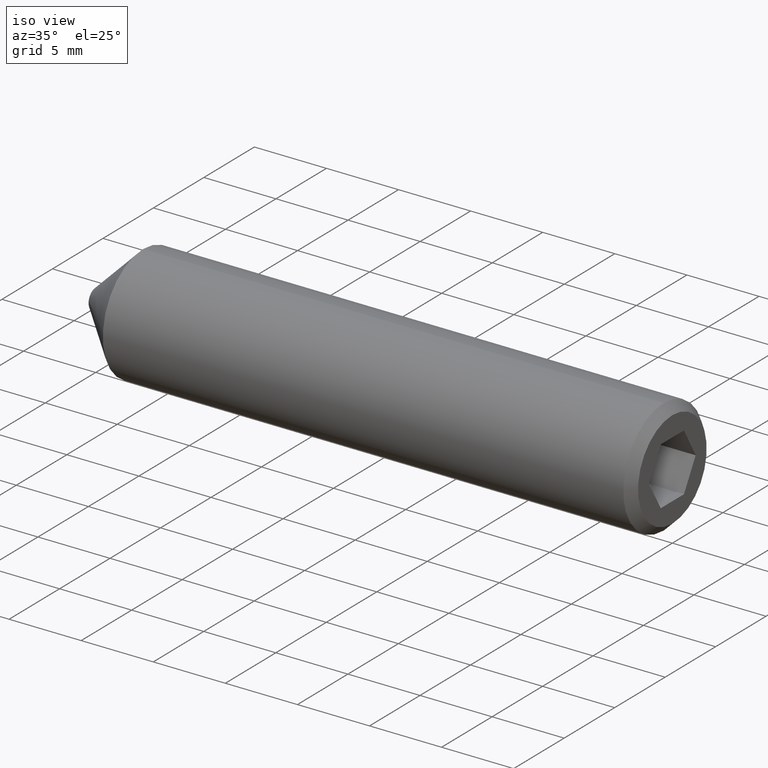
[diagram: clean part render]
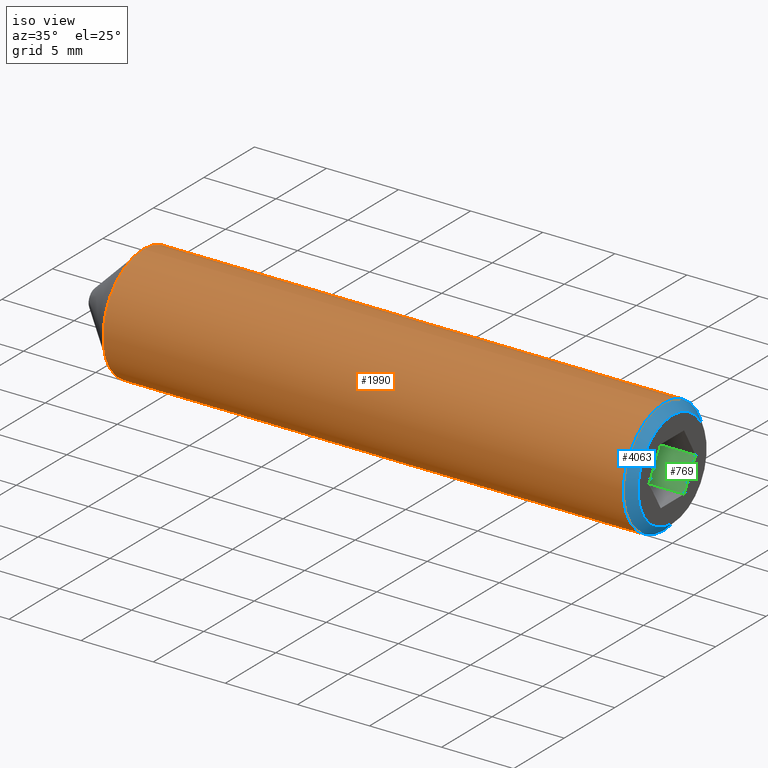
[diagram: same view with three faces highlighted in distinct colors, each labeled with its STEP entity id]
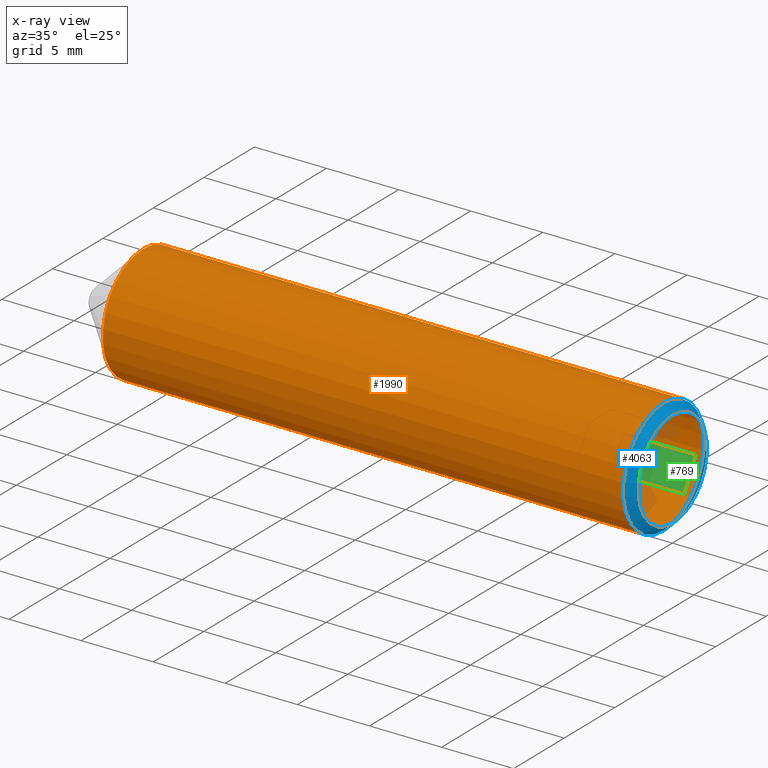
[diagram: x-ray of the same camera — body ghosted, the three highlighted faces saturated]
A machine part, iso view with three faces highlighted in distinct colors.
The next image is the same camera in x-ray (body ghosted, the three faces saturated) — at least one of them is partly hidden behind the body in this view.
Their STEP definitions:

[orange] entity #1990 — the highlighted cylindrical surface (bore or boss wall) has radius 4 mm, axis along (-1, -0, -0).
#586 = AXIS2_PLACEMENT_3D ( 'NONE', #9685, #3301, #9835 ) ;
#1257 = EDGE_CURVE ( 'NONE', #5596, #5596, #2350, .T. ) ;
#1603 = EDGE_CURVE ( 'NONE', #3156, #3156, #3956, .T. ) ;
#1990 = ADVANCED_FACE ( 'NONE', ( #7675, #5115 ), #2332, .T. ) ;
#2332 = CYLINDRICAL_SURFACE ( 'NONE', #10658, 4.000000000000000000 ) ;
#2350 = CIRCLE ( 'NONE', #586, 4.000000000000000000 ) ;
#2600 = CARTESIAN_POINT ( 'NONE',  ( 3.299999999999963400, 0.0000000000000000000, 4.000000000000000000 ) ) ;
#3156 = VERTEX_POINT ( 'NONE', #8924 ) ;
#3301 = DIRECTION ( 'NONE',  ( -1.000000000000000000, -0.0000000000000000000, -0.0000000000000000000 ) ) ;
#3956 = CIRCLE ( 'NONE', #8208, 4.000000000000000000 ) ;
#4461 = DIRECTION ( 'NONE',  ( 0.0000000000000000000, 0.0000000000000000000, 1.000000000000000000 ) ) ;
#4992 = EDGE_LOOP ( 'NONE', ( #6150 ) ) ;
#5115 = FACE_OUTER_BOUND ( 'NONE', #4992, .T. ) ;
#5459 = EDGE_LOOP ( 'NONE', ( #5468 ) ) ;
#5468 = ORIENTED_EDGE ( 'NONE', *, *, #1603, .T. ) ;
#5537 = CARTESIAN_POINT ( 'NONE',  ( 39.39999999999999900, 0.0000000000000000000, 0.0000000000000000000 ) ) ;
#5596 = VERTEX_POINT ( 'NONE', #2600 ) ;
#6150 = ORIENTED_EDGE ( 'NONE', *, *, #1257, .F. ) ;
#6370 = CARTESIAN_POINT ( 'NONE',  ( 40.00000000000000000, 0.0000000000000000000, 0.0000000000000000000 ) ) ;
#7378 = DIRECTION ( 'NONE',  ( 0.0000000000000000000, 0.0000000000000000000, -1.000000000000000000 ) ) ;
#7675 = FACE_OUTER_BOUND ( 'NONE', #5459, .T. ) ;
#8208 = AXIS2_PLACEMENT_3D ( 'NONE', #5537, #11129, #7378 ) ;
#8924 = CARTESIAN_POINT ( 'NONE',  ( 39.39999999999999900, 0.0000000000000000000, -4.000000000000000000 ) ) ;
#9685 = CARTESIAN_POINT ( 'NONE',  ( 3.299999999999963400, 0.0000000000000000000, 0.0000000000000000000 ) ) ;
#9835 = DIRECTION ( 'NONE',  ( 0.0000000000000000000, 0.0000000000000000000, 1.000000000000000000 ) ) ;
#10658 = AXIS2_PLACEMENT_3D ( 'NONE', #6370, #10887, #4461 ) ;
#10887 = DIRECTION ( 'NONE',  ( -1.000000000000000000, -0.0000000000000000000, -0.0000000000000000000 ) ) ;
#11129 = DIRECTION ( 'NONE',  ( -1.000000000000000000, 0.0000000000000000000, 0.0000000000000000000 ) ) ;

[blue] entity #4063 — the highlighted conical surface has half-angle 45 deg.
#26 = CARTESIAN_POINT ( 'NONE',  ( 40.00000000000000000, 0.0000000000000000000, 0.0000000000000000000 ) ) ;
#337 = CARTESIAN_POINT ( 'NONE',  ( 40.00000000000000000, 0.0000000000000000000, 0.0000000000000000000 ) ) ;
#730 = FACE_OUTER_BOUND ( 'NONE', #7349, .T. ) ;
#1244 = DIRECTION ( 'NONE',  ( 1.000000000000000000, 0.0000000000000000000, 0.0000000000000000000 ) ) ;
#1603 = EDGE_CURVE ( 'NONE', #3156, #3156, #3956, .T. ) ;
#1803 = CARTESIAN_POINT ( 'NONE',  ( 40.00000000000000000, 0.0000000000000000000, -3.399999999999997200 ) ) ;
#2643 = EDGE_CURVE ( 'NONE', #6879, #6879, #10655, .T. ) ;
#3156 = VERTEX_POINT ( 'NONE', #8924 ) ;
#3899 = DIRECTION ( 'NONE',  ( -1.000000000000000000, 0.0000000000000000000, 0.0000000000000000000 ) ) ;
#3956 = CIRCLE ( 'NONE', #8208, 4.000000000000000000 ) ;
#4019 = EDGE_LOOP ( 'NONE', ( #5178 ) ) ;
#4063 = ADVANCED_FACE ( 'NONE', ( #730, #5364 ), #8491, .T. ) ;
#5178 = ORIENTED_EDGE ( 'NONE', *, *, #2643, .F. ) ;
#5364 = FACE_BOUND ( 'NONE', #4019, .T. ) ;
#5537 = CARTESIAN_POINT ( 'NONE',  ( 39.39999999999999900, 0.0000000000000000000, 0.0000000000000000000 ) ) ;
#6220 = AXIS2_PLACEMENT_3D ( 'NONE', #337, #1244, #8628 ) ;
#6879 = VERTEX_POINT ( 'NONE', #1803 ) ;
#7349 = EDGE_LOOP ( 'NONE', ( #11824 ) ) ;
#7378 = DIRECTION ( 'NONE',  ( 0.0000000000000000000, 0.0000000000000000000, -1.000000000000000000 ) ) ;
#7986 = AXIS2_PLACEMENT_3D ( 'NONE', #26, #3899, #10333 ) ;
#8208 = AXIS2_PLACEMENT_3D ( 'NONE', #5537, #11129, #7378 ) ;
#8491 = CONICAL_SURFACE ( 'NONE', #7986, 3.399999999999997200, 0.7853981633974479500 ) ;
#8628 = DIRECTION ( 'NONE',  ( 0.0000000000000000000, 0.0000000000000000000, -1.000000000000000000 ) ) ;
#8924 = CARTESIAN_POINT ( 'NONE',  ( 39.39999999999999900, 0.0000000000000000000, -4.000000000000000000 ) ) ;
#10333 = DIRECTION ( 'NONE',  ( 0.0000000000000000000, 0.0000000000000000000, 1.000000000000000000 ) ) ;
#10655 = CIRCLE ( 'NONE', #6220, 3.399999999999997200 ) ;
#11129 = DIRECTION ( 'NONE',  ( -1.000000000000000000, 0.0000000000000000000, 0.0000000000000000000 ) ) ;
#11824 = ORIENTED_EDGE ( 'NONE', *, *, #1603, .F. ) ;

[green] entity #769 — the highlighted planar face has unit normal (0, 0.866, -0.5).
#210 = DIRECTION ( 'NONE',  ( 3.061515884555943800E-017, 0.8660254037844387100, -0.5000000000000001100 ) ) ;
#769 = ADVANCED_FACE ( 'NONE', ( #910 ), #1046, .F. ) ;
#790 = LINE ( 'NONE', #7766, #5295 ) ;
#910 = FACE_OUTER_BOUND ( 'NONE', #10164, .T. ) ;
#1046 = PLANE ( 'NONE',  #1738 ) ;
#1119 = DIRECTION ( 'NONE',  ( 1.000000000000000000, -0.0000000000000000000, 6.123031769111886300E-017 ) ) ;
#1738 = AXIS2_PLACEMENT_3D ( 'NONE', #5755, #210, #6659 ) ;
#2158 = CARTESIAN_POINT ( 'NONE',  ( 35.00000000000000000, 1.154700538379252400, -2.000000000000000000 ) ) ;
#2234 = ORIENTED_EDGE ( 'NONE', *, *, #8492, .T. ) ;
#2952 = VECTOR ( 'NONE', #1119, 1000.000000000000000 ) ;
#3100 = DIRECTION ( 'NONE',  ( 0.0000000000000000000, 0.4999999999999999400, 0.8660254037844386000 ) ) ;
#4121 = DIRECTION ( 'NONE',  ( 1.000000000000000000, -0.0000000000000000000, 6.123031769111886300E-017 ) ) ;
#4845 = CARTESIAN_POINT ( 'NONE',  ( 40.00000000000000000, 1.154700538379252400, -1.999999999999999600 ) ) ;
#5295 = VECTOR ( 'NONE', #3100, 1000.000000000000100 ) ;
#5755 = CARTESIAN_POINT ( 'NONE',  ( 35.00000000000000000, 1.154700538379252400, -2.000000000000000000 ) ) ;
#6659 = DIRECTION ( 'NONE',  ( 0.0000000000000000000, 0.5000000000000000000, 0.8660254037844386000 ) ) ;
#7255 = VERTEX_POINT ( 'NONE', #4845 ) ;
#7417 = LINE ( 'NONE', #9534, #2952 ) ;
#7750 = LINE ( 'NONE', #2158, #8025 ) ;
#7766 = CARTESIAN_POINT ( 'NONE',  ( 40.00000000000000000, 1.154700538379252400, -1.999999999999999600 ) ) ;
#7989 = ORIENTED_EDGE ( 'NONE', *, *, #8475, .T. ) ;
#8025 = VECTOR ( 'NONE', #8636, 1000.000000000000100 ) ;
#8475 = EDGE_CURVE ( 'NONE', #9125, #7255, #7417, .T. ) ;
#8492 = EDGE_CURVE ( 'NONE', #7255, #10141, #790, .T. ) ;
#8636 = DIRECTION ( 'NONE',  ( 0.0000000000000000000, 0.4999999999999999400, 0.8660254037844386000 ) ) ;
#8637 = CARTESIAN_POINT ( 'NONE',  ( 35.00000000000000000, 1.154700538379252400, -2.000000000000000000 ) ) ;
#8852 = CARTESIAN_POINT ( 'NONE',  ( 35.00000000000000000, 2.309401076758503400, -1.190619091596349400E-015 ) ) ;
#9037 = CARTESIAN_POINT ( 'NONE',  ( 40.00000000000000000, 2.309401076758503400, -8.844675031407550400E-016 ) ) ;
#9125 = VERTEX_POINT ( 'NONE', #8637 ) ;
#9317 = VECTOR ( 'NONE', #4121, 1000.000000000000000 ) ;
#9534 = CARTESIAN_POINT ( 'NONE',  ( 35.00000000000000000, 1.154700538379252400, -2.000000000000000000 ) ) ;
#9576 = CARTESIAN_POINT ( 'NONE',  ( 35.00000000000000000, 2.309401076758503400, -1.190619091596349400E-015 ) ) ;
#9687 = VERTEX_POINT ( 'NONE', #8852 ) ;
#10141 = VERTEX_POINT ( 'NONE', #9037 ) ;
#10164 = EDGE_LOOP ( 'NONE', ( #2234, #11036, #10396, #7989 ) ) ;
#10396 = ORIENTED_EDGE ( 'NONE', *, *, #11248, .F. ) ;
#11036 = ORIENTED_EDGE ( 'NONE', *, *, #11761, .F. ) ;
#11248 = EDGE_CURVE ( 'NONE', #9125, #9687, #7750, .T. ) ;
#11464 = LINE ( 'NONE', #9576, #9317 ) ;
#11761 = EDGE_CURVE ( 'NONE', #9687, #10141, #11464, .T. ) ;